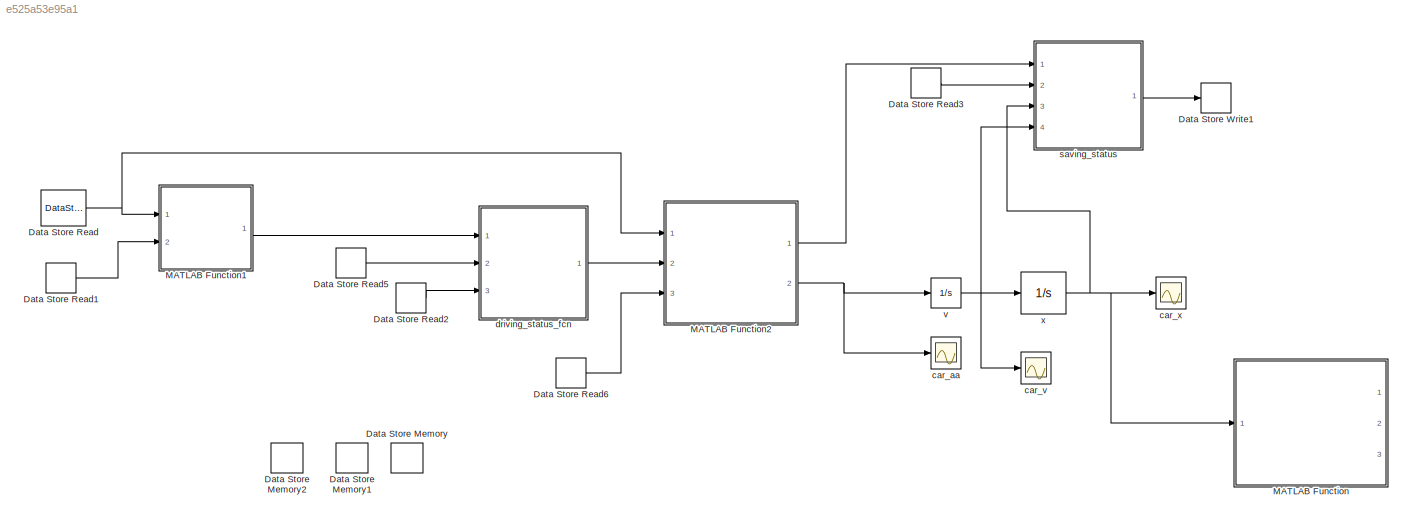
MODEL slx_e525a53e95a1
KIND model
CONFIG InitFcn = run('head_test.m')
BLOCK [DataStoreMemory] Data Store Memory
  DataStoreName = CAR
  InitialValue = car
  ReadBeforeWriteMsg = warning
  VectorParams1D = off
  WriteAfterReadMsg = warning
  WriteAfterWriteMsg = warning
BLOCK [DataStoreMemory] Data Store Memory1
  DataStoreName = N
  InitialValue = N
  ReadBeforeWriteMsg = warning
  WriteAfterReadMsg = warning
  WriteAfterWriteMsg = warning
BLOCK [DataStoreMemory] Data Store Memory2
  DataStoreName = acc
  InitialValue = acc
  ReadBeforeWriteMsg = warning
  WriteAfterReadMsg = warning
  WriteAfterWriteMsg = warning
BLOCK [DataStoreRead] Data Store Read
  DataStoreName = CAR
  Ports = [0, 1]
BLOCK [DataStoreRead] Data Store Read1
  DataStoreName = N
  Ports = [0, 1]
BLOCK [DataStoreRead] Data Store Read2
  DataStoreName = acc
  Ports = [0, 1]
BLOCK [DataStoreRead] Data Store Read3
  DataStoreName = N
  Ports = [0, 1]
BLOCK [DataStoreRead] Data Store Read5
  DataStoreName = N
  Ports = [0, 1]
BLOCK [DataStoreRead] Data Store Read6
  DataStoreName = N
  Ports = [0, 1]
BLOCK [DataStoreWrite] Data Store Write1
  DataStoreName = CAR
  Ports = [1]
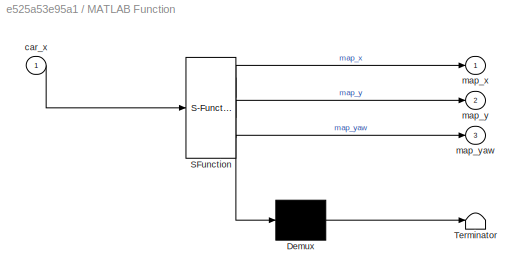
BLOCK [SubSystem] MATLAB Function
  ErrorFcn = Stateflow.Translate.translate
  PermitHierarchicalResolution = ExplicitOnly
  Ports = [1, 3]
  RequestExecContextInheritance = off
  SFBlockType = MATLAB Function
  TreatAsAtomicUnit = on
BLOCK [Demux] MATLAB Function/ Demux 
  Outputs = 1
  Ports = [1, 1]
BLOCK [S-Function] MATLAB Function/ SFunction 
  EnableBusSupport = on
  FunctionName = sf_sfun
  PortCounts = [1 4]
  Ports = [1, 4]
  Tag = Stateflow S-Function continental_test 3
BLOCK [Terminator] MATLAB Function/ Terminator 
BLOCK [Inport] MATLAB Function/car_x
  IconDisplay = Port number
BLOCK [Outport] MATLAB Function/map_x
  IconDisplay = Port number
BLOCK [Outport] MATLAB Function/map_y
  IconDisplay = Port number
  Port = 2
BLOCK [Outport] MATLAB Function/map_yaw
  IconDisplay = Port number
  Port = 3
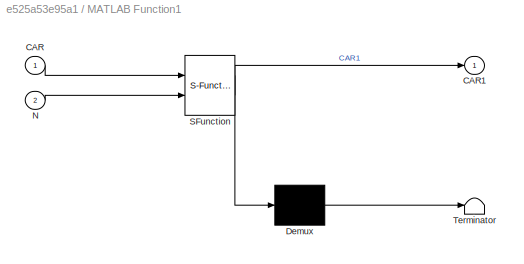
BLOCK [SubSystem] MATLAB Function1
  ErrorFcn = Stateflow.Translate.translate
  PermitHierarchicalResolution = ExplicitOnly
  Ports = [2, 1]
  RequestExecContextInheritance = off
  SFBlockType = MATLAB Function
  TreatAsAtomicUnit = on
BLOCK [Demux] MATLAB Function1/ Demux 
  Outputs = 1
  Ports = [1, 1]
BLOCK [S-Function] MATLAB Function1/ SFunction 
  EnableBusSupport = on
  FunctionName = sf_sfun
  PortCounts = [2 2]
  Ports = [2, 2]
  Tag = Stateflow S-Function continental_test 4
BLOCK [Terminator] MATLAB Function1/ Terminator 
BLOCK [Inport] MATLAB Function1/CAR
  IconDisplay = Port number
BLOCK [Outport] MATLAB Function1/CAR1
  IconDisplay = Port number
BLOCK [Inport] MATLAB Function1/N
  IconDisplay = Port number
  Port = 2
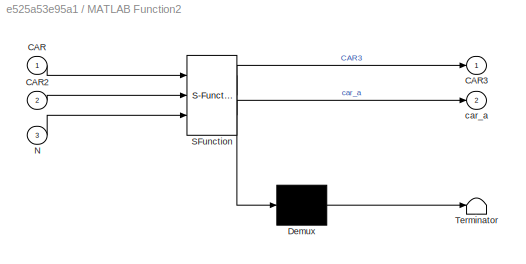
BLOCK [SubSystem] MATLAB Function2
  ErrorFcn = Stateflow.Translate.translate
  PermitHierarchicalResolution = ExplicitOnly
  Ports = [3, 2]
  RequestExecContextInheritance = off
  SFBlockType = MATLAB Function
  TreatAsAtomicUnit = on
BLOCK [Demux] MATLAB Function2/ Demux 
  Outputs = 1
  Ports = [1, 1]
BLOCK [S-Function] MATLAB Function2/ SFunction 
  EnableBusSupport = on
  FunctionName = sf_sfun
  PortCounts = [3 3]
  Ports = [3, 3]
  Tag = Stateflow S-Function continental_test 5
BLOCK [Terminator] MATLAB Function2/ Terminator 
BLOCK [Inport] MATLAB Function2/CAR
  IconDisplay = Port number
BLOCK [Inport] MATLAB Function2/CAR2
  IconDisplay = Port number
  Port = 2
BLOCK [Outport] MATLAB Function2/CAR3
  IconDisplay = Port number
BLOCK [Inport] MATLAB Function2/N
  IconDisplay = Port number
  Port = 3
BLOCK [Outport] MATLAB Function2/car_a
  IconDisplay = Port number
  Port = 2
BLOCK [Scope] car_aa
  Floating = off
  NumInputPorts = 1
  Ports = [1]
  SaveName = ScopeData4
  ShowLegends = off
  YMax = 1
  YMin = -22
BLOCK [Scope] car_v
  Floating = off
  NumInputPorts = 1
  Ports = [1]
  SaveName = ScopeData2
  ShowLegends = off
  TimeRange = 50
  YMax = 17.5
  YMin = -17.5
  ZoomMode = yonly
BLOCK [Scope] car_x
  Floating = off
  NumInputPorts = 1
  Ports = [1]
  SaveName = ScopeData1
  ShowLegends = off
  YMax = 325
  YMin = 0
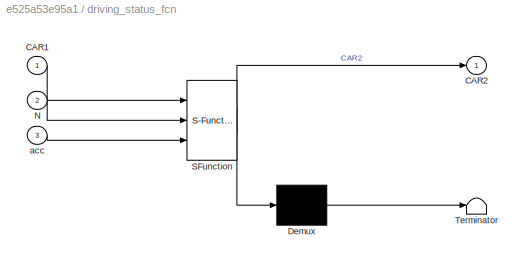
BLOCK [SubSystem] driving_status_fcn
  ErrorFcn = Stateflow.Translate.translate
  PermitHierarchicalResolution = ExplicitOnly
  Ports = [3, 1]
  RequestExecContextInheritance = off
  SFBlockType = MATLAB Function
  TreatAsAtomicUnit = on
BLOCK [Demux] driving_status_fcn/ Demux 
  Outputs = 1
  Ports = [1, 1]
BLOCK [S-Function] driving_status_fcn/ SFunction 
  EnableBusSupport = on
  FunctionName = sf_sfun
  PortCounts = [3 2]
  Ports = [3, 2]
  Tag = Stateflow S-Function continental_test 2
BLOCK [Terminator] driving_status_fcn/ Terminator 
BLOCK [Inport] driving_status_fcn/CAR1
  IconDisplay = Port number
BLOCK [Outport] driving_status_fcn/CAR2
  IconDisplay = Port number
BLOCK [Inport] driving_status_fcn/N
  IconDisplay = Port number
  Port = 2
BLOCK [Inport] driving_status_fcn/acc
  IconDisplay = Port number
  Port = 3
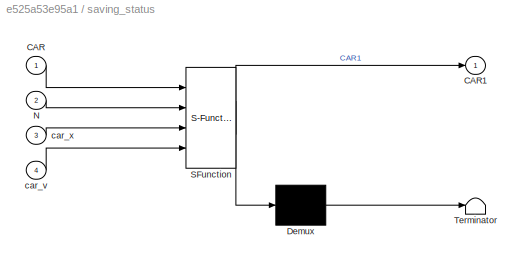
BLOCK [SubSystem] saving_status
  ErrorFcn = Stateflow.Translate.translate
  PermitHierarchicalResolution = ExplicitOnly
  Ports = [4, 1]
  RequestExecContextInheritance = off
  SFBlockType = MATLAB Function
  TreatAsAtomicUnit = on
BLOCK [Demux] saving_status/ Demux 
  Outputs = 1
  Ports = [1, 1]
BLOCK [S-Function] saving_status/ SFunction 
  EnableBusSupport = on
  FunctionName = sf_sfun
  PortCounts = [4 2]
  Ports = [4, 2]
  Tag = Stateflow S-Function continental_test 1
BLOCK [Terminator] saving_status/ Terminator 
BLOCK [Inport] saving_status/CAR
  IconDisplay = Port number
BLOCK [Outport] saving_status/CAR1
  IconDisplay = Port number
BLOCK [Inport] saving_status/N
  IconDisplay = Port number
  Port = 2
BLOCK [Inport] saving_status/car_v
  IconDisplay = Port number
  Port = 4
BLOCK [Inport] saving_status/car_x
  IconDisplay = Port number
  Port = 3
BLOCK [Integrator] v
  InitialCondition = car(:,2)'
  Ports = [1, 1]
BLOCK [Integrator] x
  InitialCondition = car(:,1)'
  Ports = [1, 1]
LINE Data Store Read1:1 -> MATLAB Function1:2
LINE Data Store Read2:1 -> driving_status_fcn:3
LINE Data Store Read3:1 -> saving_status:2
LINE Data Store Read5:1 -> driving_status_fcn:2
LINE Data Store Read6:1 -> MATLAB Function2:3
NET Data Store Read:1 -> MATLAB Function1:1, MATLAB Function2:1
LINE MATLAB Function1:1 -> driving_status_fcn:1
LINE MATLAB Function2:1 -> saving_status:1
NET MATLAB Function2:2 -> car_aa:1, v:1
LINE driving_status_fcn:1 -> MATLAB Function2:2
LINE saving_status:1 -> Data Store Write1:1
NET v:1 -> car_v:1, saving_status:4, x:1
NET x:1 -> MATLAB Function:1, car_x:1, saving_status:3
note: NET lines group one-source signal fan-out (src -> all destinations, sorted); 1:1 wires keep LINE
